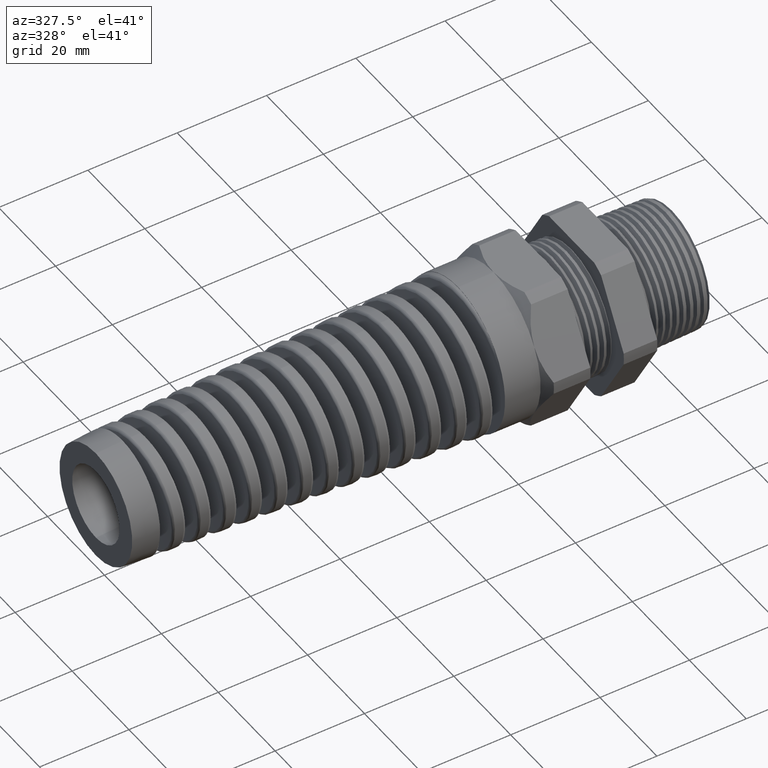
[diagram: clean part render]
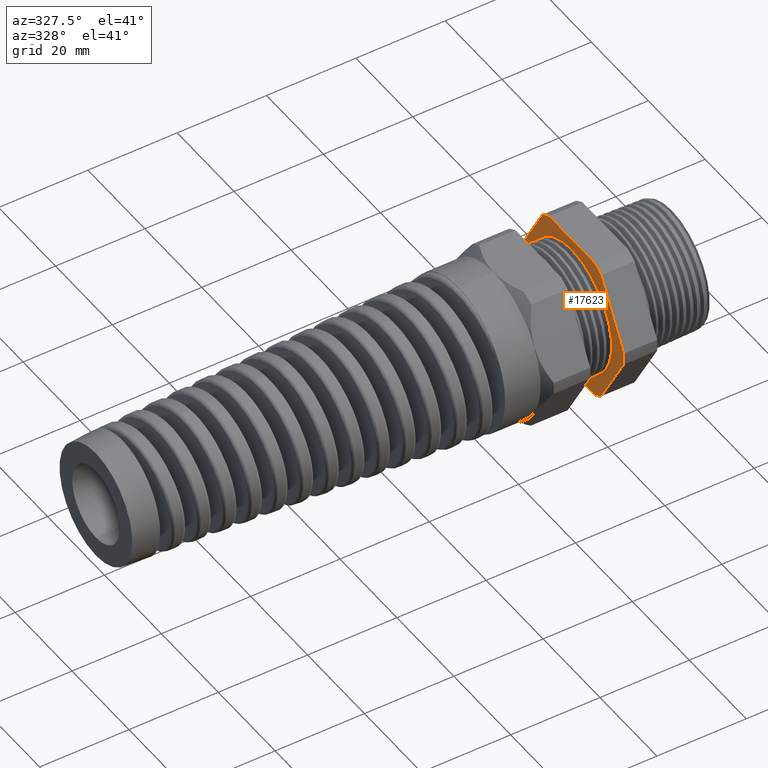
[diagram: same view with one face highlighted and labeled with its STEP entity id]
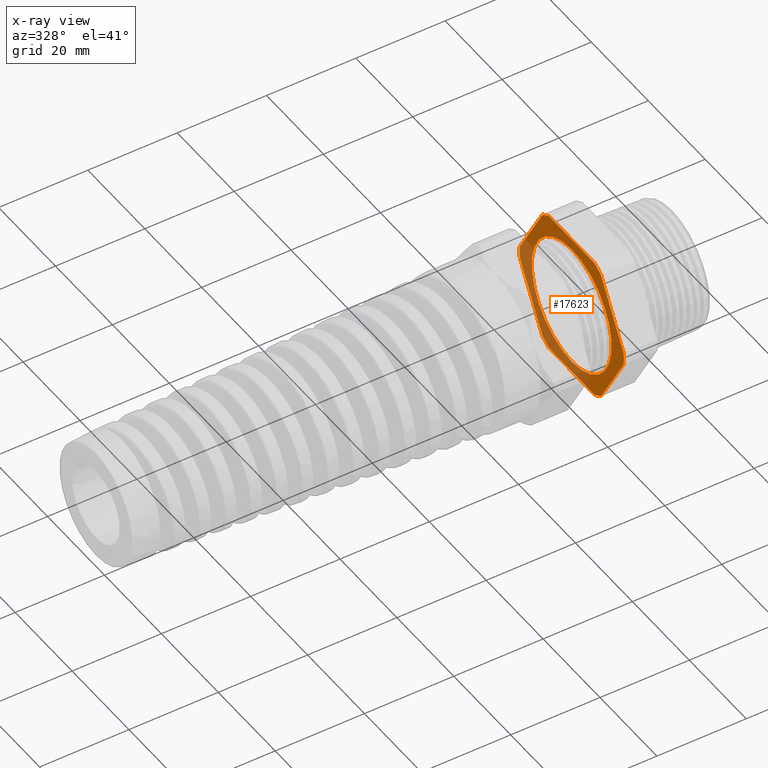
[diagram: x-ray of the same camera — body ghosted, the highlighted face saturated]
A machine part, auxiliary view. The second image highlights one B-rep face of the part: STEP entity #17623.
The next image is the same camera in x-ray: the body ghosted, the highlighted face saturated — about 36% of this face is hidden behind the body in this view.
In plain terms, the highlighted planar face has unit normal (-1, 0, 0).
Its self-contained STEP definition (entity closure, byte-faithful):
#6091 = CARTESIAN_POINT ( 'NONE',  ( -0.6052755905511810800, 6.764212301958242200E-017, -0.5522803078460621900 ) ) ;
#6105 = CARTESIAN_POINT ( 'NONE',  ( -0.6052755905511810800, 0.0000000000000000000, 0.5522803078460621900 ) ) ;
#6180 = DIRECTION ( 'NONE',  ( 0.0000000000000000000, 0.0000000000000000000, -1.000000000000000000 ) ) ;
#6181 = DIRECTION ( 'NONE',  ( 1.000000000000000000, 0.0000000000000000000, 0.0000000000000000000 ) ) ;
#6182 = CARTESIAN_POINT ( 'NONE',  ( -0.6052755905511810800, 0.0000000000000000000, 0.0000000000000000000 ) ) ;
#6183 = AXIS2_PLACEMENT_3D ( 'NONE', #6182, #6181, #6180 ) ;
#6184 = CIRCLE ( 'NONE', #6183, 0.5522803078460621900 ) ;
#6314 = CARTESIAN_POINT ( 'NONE',  ( -0.6052755905511810800, 0.0000000000000000000, 0.0000000000000000000 ) ) ;
#6316 = CARTESIAN_POINT ( 'NONE',  ( -0.6052755905511810800, 0.4063420493440887400, -0.5961949252843789000 ) ) ;
#6335 = CARTESIAN_POINT ( 'NONE',  ( -0.6052755905511810800, 0.3131489262315934100, -0.6500000000000001300 ) ) ;
#6336 = DIRECTION ( 'NONE',  ( 0.0000000000000000000, 0.0000000000000000000, 1.000000000000000000 ) ) ;
#6337 = DIRECTION ( 'NONE',  ( -1.000000000000000000, 0.0000000000000000000, 0.0000000000000000000 ) ) ;
#6338 = AXIS2_PLACEMENT_3D ( 'NONE', #6314, #6337, #6336 ) ;
#6339 = CIRCLE ( 'NONE', #6338, 0.7215000000000000300 ) ;
#6383 = CARTESIAN_POINT ( 'NONE',  ( -0.6052755905511810800, 0.7194909755756817600, 0.05380507471562175100 ) ) ;
#6384 = CARTESIAN_POINT ( 'NONE',  ( -0.6052755905511810800, 0.4063420493440889100, 0.5961949252843789000 ) ) ;
#6385 = DIRECTION ( 'NONE',  ( 0.0000000000000000000, 0.5000000000000000000, -0.8660254037844386000 ) ) ;
#6386 = VECTOR ( 'NONE', #6385, 39.37007874015748900 ) ;
#6387 = CARTESIAN_POINT ( 'NONE',  ( -0.6052755905511810800, 0.8879165124598854500, -0.2379165124598848800 ) ) ;
#6388 = LINE ( 'NONE', #6387, #6386 ) ;
#6389 = DIRECTION ( 'NONE',  ( 0.0000000000000000000, 0.0000000000000000000, 1.000000000000000000 ) ) ;
#6390 = DIRECTION ( 'NONE',  ( -1.000000000000000000, 0.0000000000000000000, 0.0000000000000000000 ) ) ;
#6391 = CARTESIAN_POINT ( 'NONE',  ( -0.6052755905511810800, 1.299999999999999800, 0.0000000000000000000 ) ) ;
#6392 = AXIS2_PLACEMENT_3D ( 'NONE', #6391, #6390, #6389 ) ;
#6393 = PLANE ( 'NONE',  #6392 ) ;
#6394 = FACE_OUTER_BOUND ( 'NONE', #17627, .T. ) ;
#6395 = FACE_BOUND ( 'NONE', #17624, .T. ) ;
#6396 = DIRECTION ( 'NONE',  ( 0.0000000000000000000, 0.0000000000000000000, -1.000000000000000000 ) ) ;
#6397 = DIRECTION ( 'NONE',  ( 1.000000000000000000, 0.0000000000000000000, 0.0000000000000000000 ) ) ;
#6398 = CARTESIAN_POINT ( 'NONE',  ( -0.6052755905511810800, 0.0000000000000000000, 0.0000000000000000000 ) ) ;
#6399 = AXIS2_PLACEMENT_3D ( 'NONE', #6398, #6397, #6396 ) ;
#6400 = CIRCLE ( 'NONE', #6399, 0.5522803078460621900 ) ;
#6401 = CARTESIAN_POINT ( 'NONE',  ( -0.6052755905511810800, -0.4063420493440883500, -0.5961949252843792300 ) ) ;
#6402 = DIRECTION ( 'NONE',  ( 0.0000000000000000000, 0.0000000000000000000, 1.000000000000000000 ) ) ;
#6403 = DIRECTION ( 'NONE',  ( -1.000000000000000000, 0.0000000000000000000, 0.0000000000000000000 ) ) ;
#6404 = CARTESIAN_POINT ( 'NONE',  ( -0.6052755905511810800, 0.0000000000000000000, 0.0000000000000000000 ) ) ;
#6405 = AXIS2_PLACEMENT_3D ( 'NONE', #6404, #6403, #6402 ) ;
#6406 = CIRCLE ( 'NONE', #6405, 0.7215000000000000300 ) ;
#6407 = CARTESIAN_POINT ( 'NONE',  ( -0.6052755905511810800, -0.3131489262315934100, -0.6500000000000001300 ) ) ;
#6408 = DIRECTION ( 'NONE',  ( 0.0000000000000000000, -1.000000000000000000, 0.0000000000000000000 ) ) ;
#6409 = VECTOR ( 'NONE', #6408, 39.37007874015748100 ) ;
#6410 = CARTESIAN_POINT ( 'NONE',  ( -0.6052755905511810800, 1.299999999999999800, -0.6500000000000001300 ) ) ;
#6411 = LINE ( 'NONE', #6410, #6409 ) ;
#6412 = AXIS2_PLACEMENT_3D ( 'NONE', #6475, #6474, #6473 ) ;
#6417 = CIRCLE ( 'NONE', #6412, 0.7215000000000000300 ) ;
#6443 = CARTESIAN_POINT ( 'NONE',  ( -0.6052755905511810800, -0.2379165124598858200, 0.8879165124598845700 ) ) ;
#6444 = LINE ( 'NONE', #6443, #6508 ) ;
#6445 = CARTESIAN_POINT ( 'NONE',  ( -0.6052755905511810800, -0.7194909755756820900, 0.05380507471562026600 ) ) ;
#6446 = DIRECTION ( 'NONE',  ( 0.0000000000000000000, 0.0000000000000000000, 1.000000000000000000 ) ) ;
#6447 = DIRECTION ( 'NONE',  ( -1.000000000000000000, 0.0000000000000000000, 0.0000000000000000000 ) ) ;
#6448 = CARTESIAN_POINT ( 'NONE',  ( -0.6052755905511810800, 0.0000000000000000000, 0.0000000000000000000 ) ) ;
#6449 = AXIS2_PLACEMENT_3D ( 'NONE', #6448, #6447, #6446 ) ;
#6450 = CIRCLE ( 'NONE', #6449, 0.7215000000000002500 ) ;
#6451 = CARTESIAN_POINT ( 'NONE',  ( -0.6052755905511810800, -0.7194909755756819800, -0.05380507471562111900 ) ) ;
#6452 = DIRECTION ( 'NONE',  ( 0.0000000000000000000, -0.5000000000000001100, 0.8660254037844384900 ) ) ;
#6453 = VECTOR ( 'NONE', #6452, 39.37007874015748900 ) ;
#6454 = CARTESIAN_POINT ( 'NONE',  ( -0.6052755905511810800, -0.2379165124598852700, -0.8879165124598855700 ) ) ;
#6455 = LINE ( 'NONE', #6454, #6453 ) ;
#6473 = DIRECTION ( 'NONE',  ( 0.0000000000000000000, 0.0000000000000000000, 1.000000000000000000 ) ) ;
#6474 = DIRECTION ( 'NONE',  ( -1.000000000000000000, 0.0000000000000000000, 0.0000000000000000000 ) ) ;
#6475 = CARTESIAN_POINT ( 'NONE',  ( -0.6052755905511810800, 0.0000000000000000000, 0.0000000000000000000 ) ) ;
#6485 = DIRECTION ( 'NONE',  ( 0.0000000000000000000, -0.4999999999999998300, -0.8660254037844388200 ) ) ;
#6486 = VECTOR ( 'NONE', #6485, 39.37007874015748100 ) ;
#6487 = CARTESIAN_POINT ( 'NONE',  ( -0.6052755905511810800, 0.8879165124598850100, 0.2379165124598849300 ) ) ;
#6488 = LINE ( 'NONE', #6487, #6486 ) ;
#6489 = CARTESIAN_POINT ( 'NONE',  ( -0.6052755905511810800, 0.7194909755756818700, -0.05380507471562089000 ) ) ;
#6490 = DIRECTION ( 'NONE',  ( 0.0000000000000000000, 0.0000000000000000000, 1.000000000000000000 ) ) ;
#6491 = DIRECTION ( 'NONE',  ( -1.000000000000000000, 0.0000000000000000000, 0.0000000000000000000 ) ) ;
#6492 = CARTESIAN_POINT ( 'NONE',  ( -0.6052755905511810800, 0.0000000000000000000, 0.0000000000000000000 ) ) ;
#6493 = AXIS2_PLACEMENT_3D ( 'NONE', #6492, #6491, #6490 ) ;
#6494 = CIRCLE ( 'NONE', #6493, 0.7214999999999999200 ) ;
#6495 = CARTESIAN_POINT ( 'NONE',  ( -0.6052755905511810800, 0.3131489262315937900, 0.6499999999999999100 ) ) ;
#6496 = DIRECTION ( 'NONE',  ( 0.0000000000000000000, 1.000000000000000000, 0.0000000000000000000 ) ) ;
#6497 = VECTOR ( 'NONE', #6496, 39.37007874015748100 ) ;
#6498 = CARTESIAN_POINT ( 'NONE',  ( -0.6052755905511810800, 1.299999999999999800, 0.6499999999999999100 ) ) ;
#6499 = LINE ( 'NONE', #6498, #6497 ) ;
#6500 = CARTESIAN_POINT ( 'NONE',  ( -0.6052755905511810800, -0.3131489262315937400, 0.6500000000000000200 ) ) ;
#6501 = DIRECTION ( 'NONE',  ( 0.0000000000000000000, 0.0000000000000000000, 1.000000000000000000 ) ) ;
#6502 = DIRECTION ( 'NONE',  ( -1.000000000000000000, 0.0000000000000000000, 0.0000000000000000000 ) ) ;
#6503 = CARTESIAN_POINT ( 'NONE',  ( -0.6052755905511810800, 0.0000000000000000000, 0.0000000000000000000 ) ) ;
#6504 = AXIS2_PLACEMENT_3D ( 'NONE', #6503, #6502, #6501 ) ;
#6505 = CIRCLE ( 'NONE', #6504, 0.7215000000000000300 ) ;
#6506 = CARTESIAN_POINT ( 'NONE',  ( -0.6052755905511810800, -0.4063420493440885700, 0.5961949252843791200 ) ) ;
#6507 = DIRECTION ( 'NONE',  ( 0.0000000000000000000, 0.4999999999999997200, 0.8660254037844388200 ) ) ;
#6508 = VECTOR ( 'NONE', #6507, 39.37007874015748100 ) ;
#16361 = VERTEX_POINT ( 'NONE', #6105 ) ;
#17433 = VERTEX_POINT ( 'NONE', #6091 ) ;
#17463 = EDGE_CURVE ( 'NONE', #17433, #16361, #6184, .T. ) ;
#17609 = VERTEX_POINT ( 'NONE', #6316 ) ;
#17610 = ORIENTED_EDGE ( 'NONE', *, *, #17611, .T. ) ;
#17611 = EDGE_CURVE ( 'NONE', #17609, #17612, #6339, .T. ) ;
#17612 = VERTEX_POINT ( 'NONE', #6335 ) ;
#17613 = ORIENTED_EDGE ( 'NONE', *, *, #17614, .T. ) ;
#17614 = EDGE_CURVE ( 'NONE', #17612, #17615, #6411, .T. ) ;
#17615 = VERTEX_POINT ( 'NONE', #6407 ) ;
#17616 = ORIENTED_EDGE ( 'NONE', *, *, #17617, .T. ) ;
#17617 = EDGE_CURVE ( 'NONE', #17615, #17618, #6406, .T. ) ;
#17618 = VERTEX_POINT ( 'NONE', #6401 ) ;
#17620 = EDGE_CURVE ( 'NONE', #16361, #17433, #6400, .T. ) ;
#17623 = ADVANCED_FACE ( 'NONE', ( #6395, #6394 ), #6393, .T. ) ;
#17624 = EDGE_LOOP ( 'NONE', ( #17625, #17626 ) ) ;
#17625 = ORIENTED_EDGE ( 'NONE', *, *, #17620, .T. ) ;
#17626 = ORIENTED_EDGE ( 'NONE', *, *, #17463, .T. ) ;
#17627 = EDGE_LOOP ( 'NONE', ( #17628, #17679, #17682, #17610, #17613, #17616, #17664, #17667, #17670, #17673, #17676, #17652 ) ) ;
#17628 = ORIENTED_EDGE ( 'NONE', *, *, #17629, .T. ) ;
#17629 = EDGE_CURVE ( 'NONE', #17630, #17631, #6388, .T. ) ;
#17630 = VERTEX_POINT ( 'NONE', #6384 ) ;
#17631 = VERTEX_POINT ( 'NONE', #6383 ) ;
#17652 = ORIENTED_EDGE ( 'NONE', *, *, #17653, .T. ) ;
#17653 = EDGE_CURVE ( 'NONE', #17678, #17630, #6417, .T. ) ;
#17664 = ORIENTED_EDGE ( 'NONE', *, *, #17665, .T. ) ;
#17665 = EDGE_CURVE ( 'NONE', #17618, #17666, #6455, .T. ) ;
#17666 = VERTEX_POINT ( 'NONE', #6451 ) ;
#17667 = ORIENTED_EDGE ( 'NONE', *, *, #17668, .T. ) ;
#17668 = EDGE_CURVE ( 'NONE', #17666, #17669, #6450, .T. ) ;
#17669 = VERTEX_POINT ( 'NONE', #6445 ) ;
#17670 = ORIENTED_EDGE ( 'NONE', *, *, #17671, .T. ) ;
#17671 = EDGE_CURVE ( 'NONE', #17669, #17672, #6444, .T. ) ;
#17672 = VERTEX_POINT ( 'NONE', #6506 ) ;
#17673 = ORIENTED_EDGE ( 'NONE', *, *, #17674, .T. ) ;
#17674 = EDGE_CURVE ( 'NONE', #17672, #17675, #6505, .T. ) ;
#17675 = VERTEX_POINT ( 'NONE', #6500 ) ;
#17676 = ORIENTED_EDGE ( 'NONE', *, *, #17677, .T. ) ;
#17677 = EDGE_CURVE ( 'NONE', #17675, #17678, #6499, .T. ) ;
#17678 = VERTEX_POINT ( 'NONE', #6495 ) ;
#17679 = ORIENTED_EDGE ( 'NONE', *, *, #17680, .T. ) ;
#17680 = EDGE_CURVE ( 'NONE', #17631, #17681, #6494, .T. ) ;
#17681 = VERTEX_POINT ( 'NONE', #6489 ) ;
#17682 = ORIENTED_EDGE ( 'NONE', *, *, #17683, .T. ) ;
#17683 = EDGE_CURVE ( 'NONE', #17681, #17609, #6488, .T. ) ;